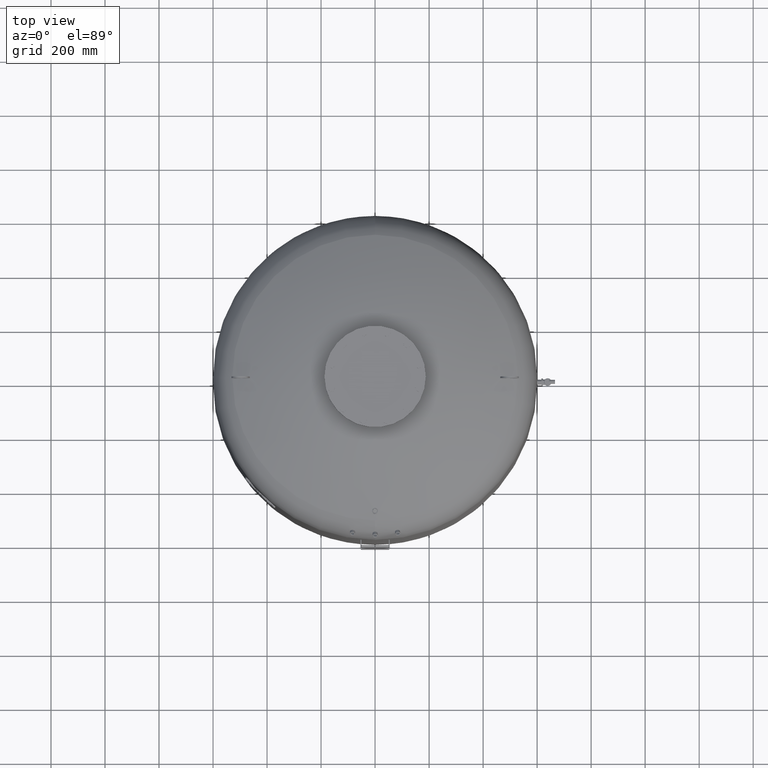
[diagram: clean part render]
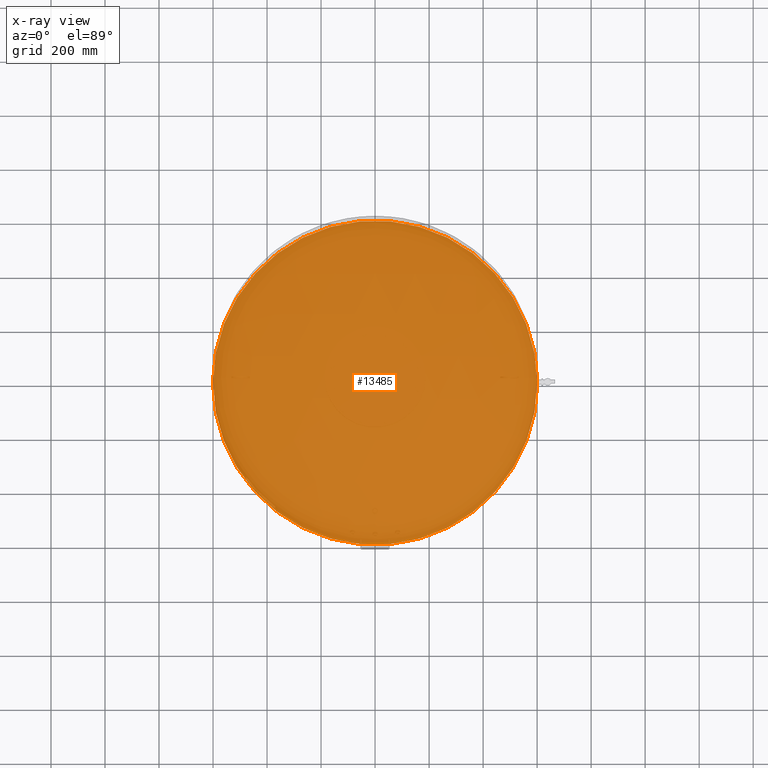
[diagram: x-ray — body ghosted, one internal face saturated and labeled with its STEP entity id]
A machine part, top view, then the same camera in x-ray: the body is ghosted and one INTERNAL B-rep face — a face not visible from any outside direction — is saturated and labeled: STEP entity #13485.
In plain terms, the highlighted planar face has unit normal (0, 0, 1).
Its self-contained STEP definition (entity closure, byte-faithful):
#13283=CARTESIAN_POINT('',(-600.000000000000110,-4.684274E-014,715.0));
#13284=VERTEX_POINT('',#13283);
#13293=CARTESIAN_POINT('',(599.999999999999890,2.663364E-014,715.000000000000110));
#13294=VERTEX_POINT('',#13293);
#13295=CARTESIAN_POINT('',(-3.836254E-014,-4.684274E-014,715.0));
#13296=DIRECTION('',(0.0,0.0,1.0));
#13297=DIRECTION('',(-1.0,0.0,0.0));
#13298=AXIS2_PLACEMENT_3D('',#13295,#13296,#13297);
#13299=CIRCLE('',#13298,600.0);
#13300=EDGE_CURVE('',#13294,#13284,#13299,.T.);
#13466=CARTESIAN_POINT('',(-3.836254E-014,-4.684274E-014,715.0));
#13467=DIRECTION('',(0.0,0.0,1.0));
#13468=DIRECTION('',(-1.0,0.0,0.0));
#13469=AXIS2_PLACEMENT_3D('',#13466,#13467,#13468);
#13470=CIRCLE('',#13469,600.0);
#13471=EDGE_CURVE('',#13284,#13294,#13470,.T.);
#13476=CARTESIAN_POINT('',(-300.000000000000060,-4.684274E-014,715.0));
#13477=DIRECTION('',(0.0,0.0,1.0));
#13478=DIRECTION('',(0.0,-1.0,0.0));
#13479=AXIS2_PLACEMENT_3D('',#13476,#13477,#13478);
#13480=PLANE('',#13479);
#13481=ORIENTED_EDGE('',*,*,#13471,.T.);
#13482=ORIENTED_EDGE('',*,*,#13300,.T.);
#13483=EDGE_LOOP('',(#13481,#13482));
#13484=FACE_OUTER_BOUND('',#13483,.T.);
#13485=ADVANCED_FACE('',(#13484),#13480,.T.);